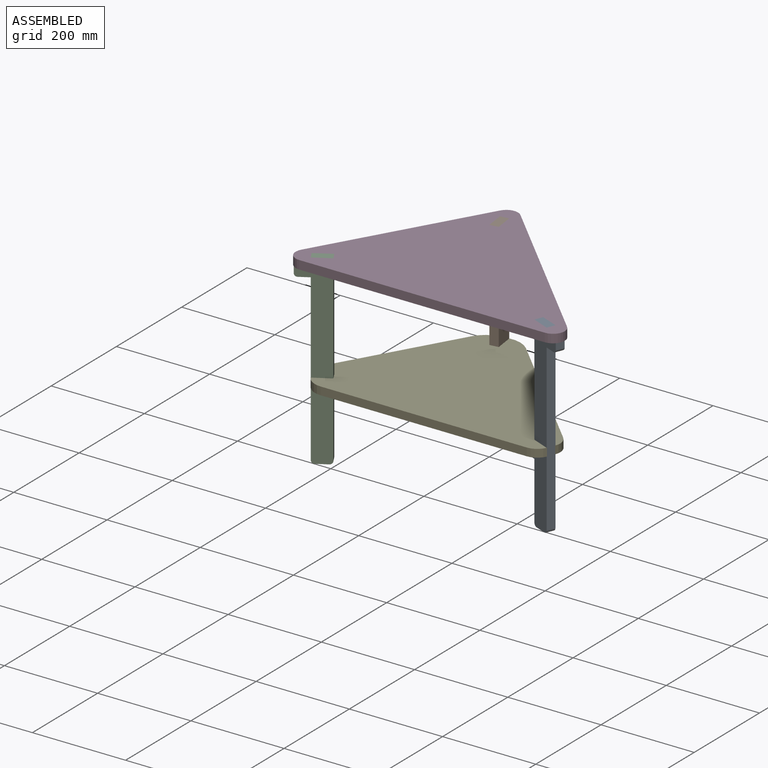
[diagram: assembled view]
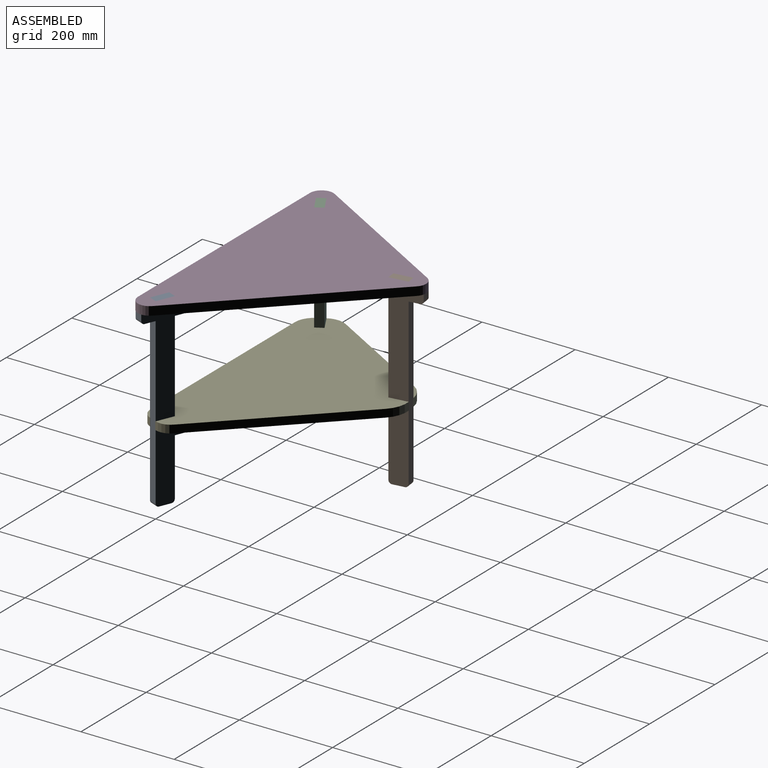
[diagram: assembled view, second angle]
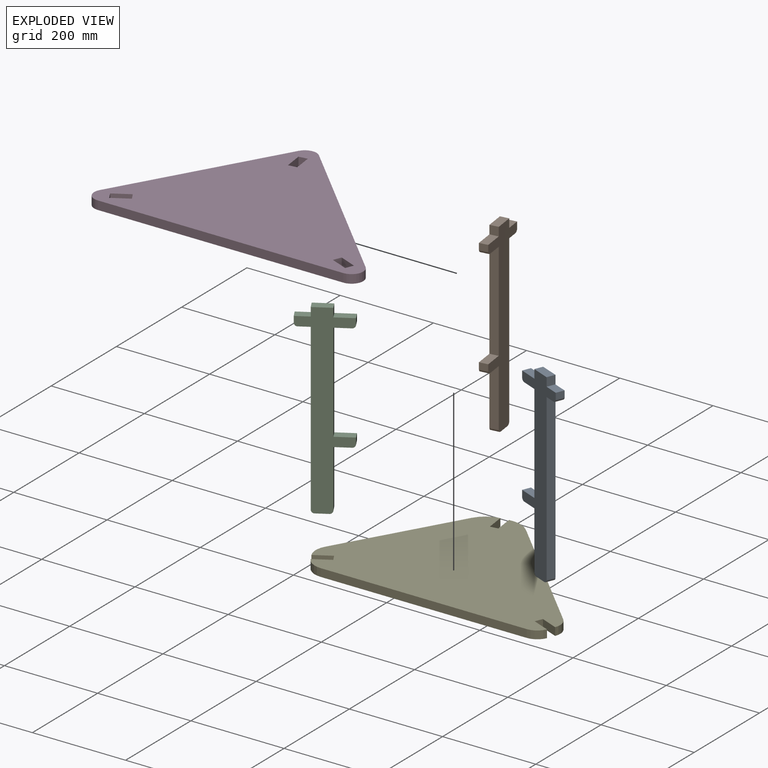
[diagram: exploded view]
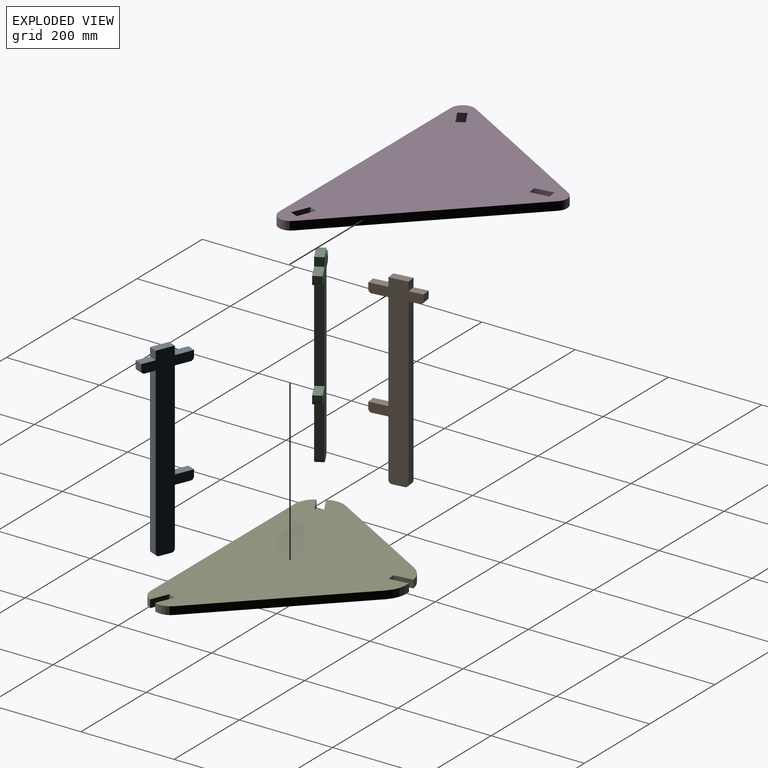
[diagram: exploded view, second angle]
ASSEMBLY  parts=5 mates=4
PART A: 23 faces, bbox 110x18.5x400 mm
  f0: plane 18.5x13mm, normal (-1,0,0), area 240.5mm2, adj f1,f20,f21,f22
  f1: cylinder r=7mm len=18.5mm, axis (0,1,0), area 203.4mm2, adj f0,f2,f21,f22
  f2: plane 23x18.5mm, normal (0,0,-1), area 425.5mm2, adj f1,f3,f21,f22
  f3: plane 354.5x18.5mm, normal (-1,0,0), area 6558.2mm2, adj f2,f4,f21,f22
  f4: cylinder r=7mm len=18.5mm, axis (0,1,0), area 203.4mm2, adj f3,f5,f21,f22
  f5: plane 26x18.5mm, normal (0,0,-1), area 481mm2, adj f4,f6,f21,f22
  f6: cylinder r=7mm len=18.5mm, axis (0,1,0), area 203.4mm2, adj f5,f7,f21,f22
  f7: plane 123x18.5mm, normal (1,0,0), area 2275.5mm2, adj f6,f8,f21,f22
  f8: plane 33x18.5mm, normal (0,0,-1), area 610.5mm2, adj f7,f9,f21,f22
  f9: cylinder r=7mm len=18.5mm, axis (0,1,0), area 203.4mm2, adj f8,f10,f21,f22
  f10: plane 18.5x13mm, normal (1,0,0), area 240.5mm2, adj f9,f11,f21,f22
  f11: plane 40x18.5mm, normal (0,0,1), area 740mm2, adj f10,f12,f21,f22
  f12: plane 211.5x18.5mm, normal (1,0,0), area 3912.7mm2, adj f11,f13,f21,f22
  f13: plane 33x18.5mm, normal (0,0,-1), area 610.5mm2, adj f12,f14,f21,f22
  f14: cylinder r=7mm len=18.5mm, axis (0,1,0), area 203.4mm2, adj f13,f15,f21,f22
  f15: plane 18.5x13mm, normal (1,0,0), area 240.5mm2, adj f14,f16,f21,f22
  f16: plane 40x18.5mm, normal (0,0,1), area 740mm2, adj f15,f17,f21,f22
  f17: plane 18.5x18.5mm, normal (1,0,0), area 342.3mm2, adj f16,f18,f21,f22
  f18: plane 40x18.5mm, normal (0,0,1), area 740mm2, adj f17,f19,f21,f22
  f19: plane 18.5x18.5mm, normal (-1,0,0), area 342.3mm2, adj f18,f20,f21,f22
  f20: plane 30x18.5mm, normal (0,0,1), area 555mm2, adj f0,f19,f21,f22
  f21: plane 400x110mm, normal (0,-1,0), area 18147.4mm2, adj f0,f1,f2,f3,f4,f5,f6,f7
  f22: plane 400x110mm, normal (0,1,0), area 18147.4mm2, adj f0,f1,f2,f3,f4,f5,f6,f7
PART B: same geometry as A
PART C: same geometry as A
PART D: 20 faces, bbox 577.3x384.3x18.5 mm
  f0: plane 18.5x17.09mm, normal (-0.92,0.38,0), area 342.2mm2, adj f1,f17,f18,f19
  f1: plane 36.96x18.5mm, normal (0.38,0.92,0), area 740mm2, adj f0,f2,f18,f19
  f2: plane 18.5x17.09mm, normal (0.92,-0.38,0), area 342.2mm2, adj f1,f17,f18,f19
  f3: plane 39.66x18.5mm, normal (0.99,0.13,0), area 740mm2, adj f4,f14,f18,f19
  f4: plane 18.5x18.34mm, normal (0.13,-0.99,0), area 342.2mm2, adj f3,f5,f18,f19
  f5: plane 39.66x18.5mm, normal (-0.99,-0.13,0), area 740mm2, adj f4,f14,f18,f19
  f6: plane 18.5x16.02mm, normal (0.87,0.5,0), area 342.3mm2, adj f7,f15,f18,f19
  f7: plane 34.64x20mm, normal (0.5,-0.87,0), area 740mm2, adj f6,f8,f18,f19
  f8: plane 18.5x16.02mm, normal (-0.87,-0.5,0), area 342.3mm2, adj f7,f15,f18,f19
  f9: plane 334.28x193mm, normal (-0.87,0.5,0), area 7141mm2, adj f10,f16,f18,f19
  f10: cylinder r=25mm len=37.5mm, axis (0,0,-1), area 968.7mm2, adj f9,f11,f18,f19
  f11: plane 527.28x18.5mm, normal (0,-1,0), area 9754.7mm2, adj f10,f12,f18,f19
  f12: cylinder r=25mm len=42.68mm, axis (0,0,-1), area 1089.7mm2, adj f11,f13,f18,f19
  f13: plane 334.28x334.28mm, normal (0.71,0.71,0), area 8745.9mm2, adj f12,f16,f18,f19
  f14: plane 18.5x18.34mm, normal (-0.13,0.99,0), area 342.3mm2, adj f3,f5,f18,f19
  f15: plane 34.64x20mm, normal (-0.5,0.87,0), area 740mm2, adj f6,f8,f18,f19
  f16: cylinder r=25mm len=39.33mm, axis (0,0,-1), area 847.6mm2, adj f9,f13,f18,f19
  f17: plane 36.96x18.5mm, normal (-0.38,-0.92,0), area 740mm2, adj f0,f2,f18,f19
  f18: plane 577.28x384.28mm, normal (0,0,1), area 122525.6mm2, adj f0,f1,f2,f3,f4,f5,f6,f7
  f19: plane 577.28x384.28mm, normal (0,0,-1), area 122525.6mm2, adj f0,f1,f2,f3,f4,f5,f6,f7
PART E: 20 faces, bbox 531.2x354.4x17 mm
  f0: plane 246.47x142.3mm, normal (-0.87,0.5,0), area 4838.3mm2, adj f3,f13,f17,f18
  f1: plane 442.62x17mm, normal (0,-1,0), area 7524.5mm2, adj f3,f13,f14,f19
  f2: plane 267.83x267.83mm, normal (0.71,0.71,0), area 6439.1mm2, adj f3,f13,f15,f16
  f3: plane 531.19x354.45mm, normal (0,0,1), area 117860.8mm2, adj f0,f1,f2,f4,f5,f6,f7,f8
  f4: plane 36.96x17mm, normal (0.38,0.92,0), area 680mm2, adj f3,f5,f13,f14
  f5: plane 17x15.71mm, normal (0.92,-0.38,0), area 289mm2, adj f3,f4,f12,f13
  f6: plane 39.66x17mm, normal (0.99,0.13,0), area 680mm2, adj f3,f10,f13,f17
  f7: plane 39.66x17mm, normal (-0.99,-0.13,0), area 680mm2, adj f3,f10,f13,f16
  f8: plane 34.64x20mm, normal (0.5,-0.87,0), area 680mm2, adj f3,f9,f13,f18
  f9: plane 17x14.72mm, normal (-0.87,-0.5,0), area 289mm2, adj f3,f8,f11,f13
  f10: plane 17x16.85mm, normal (-0.13,0.99,0), area 289mm2, adj f3,f6,f7,f13
  f11: plane 34.64x20mm, normal (-0.5,0.87,0), area 680mm2, adj f3,f9,f13,f19
  f12: plane 36.96x17mm, normal (-0.38,-0.92,0), area 680mm2, adj f3,f5,f13,f15
  f13: plane 531.19x354.45mm, normal (0,0,-1), area 117860.8mm2, adj f0,f1,f2,f4,f5,f6,f7,f8
  f14: cylinder r=31.8mm len=29.38mm, axis (0,0,1), area 636.9mm2, adj f1,f3,f4,f13
  f15: cylinder r=31.8mm len=34.66mm, axis (0,0,1), area 636.9mm2, adj f2,f3,f12,f13
  f16: cylinder r=56.76mm len=47.54mm, axis (0,0,1), area 884.2mm2, adj f2,f3,f7,f13
  f17: cylinder r=56.76mm len=41.75mm, axis (0,0,1), area 884.2mm2, adj f0,f3,f6,f13
  f18: cylinder r=41.77mm len=41.77mm, axis (0,0,1), area 743.5mm2, adj f0,f3,f8,f13
  f19: cylinder r=41.77mm len=36.17mm, axis (0,0,1), area 743.5mm2, adj f1,f3,f11,f13
PLACE A rot(axis=(0,0,1),157.5deg) t=(314.91,35.25,-381.5)mm
PLACE B rot(axis=(0,0,-1),82.5deg) t=(8.86,332.74,-381.5)mm
PLACE C rot(axis=(0,0,1),30deg) t=(-164.45,38.39,-381.5)mm
PLACE D at identity fixed
PLACE E t=(0,0,-231.5)mm
MATE fastened D.f18 <-> C.f18  axis (0,0,1) through (-147.13,48.39,18.5)mm
MATE fastened B.f18 <-> D.f18  axis (0,0,1) through (11.47,312.91,18.5)mm
MATE fastened E.f13 <-> C.f11  axis (0,0,-1) through (-147.13,48.39,-231.5)mm
MATE fastened A.f18 <-> D.f18  axis (0,0,1) through (296.43,42.9,18.5)mm
